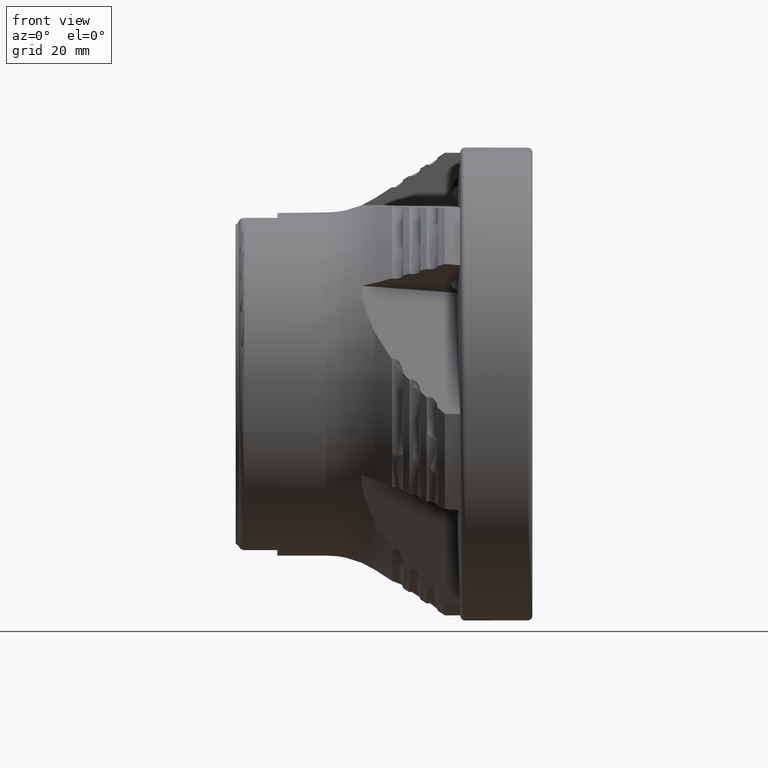
[diagram: clean part render]
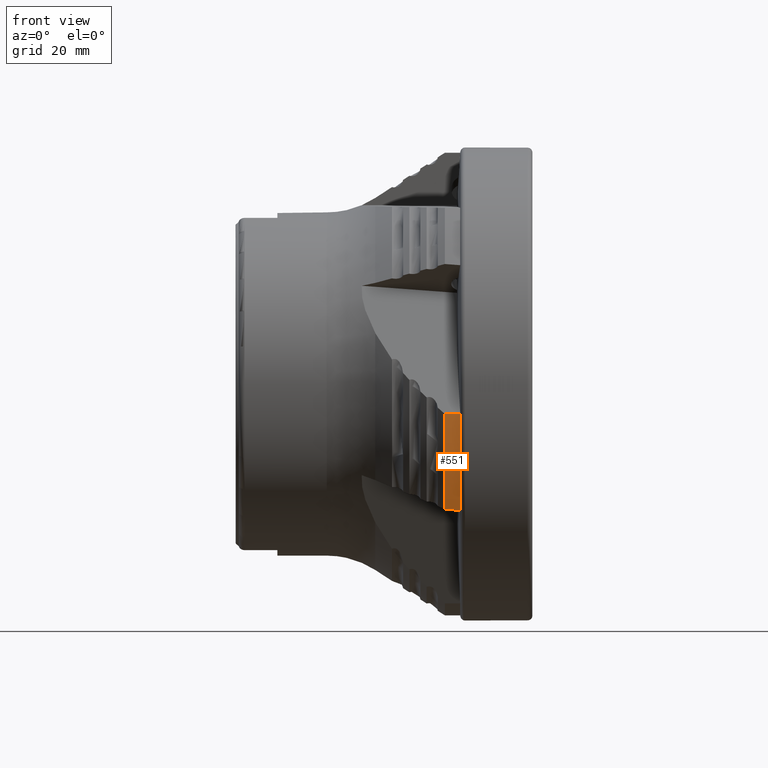
[diagram: same view with one face highlighted and labeled with its STEP entity id]
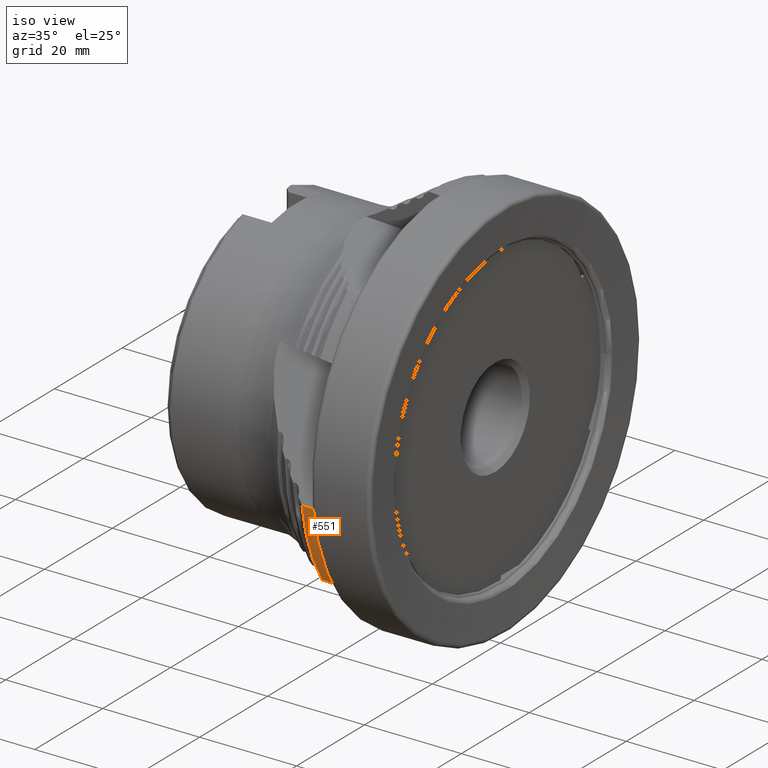
[diagram: same view with one face highlighted and labeled with its STEP entity id]
A machine part, front view. The second image highlights one B-rep face of the part: STEP entity #551.
A second angle (iso view) of the same face is appended — the face is thin or edge-on in the first view.
In plain terms, the highlighted cylindrical surface (partial cylindrical patch) has radius 39.1 mm, axis along (1, -0, -0).
Its self-contained STEP definition (entity closure, byte-faithful):
#368 = VERTEX_POINT ( 'NONE', #3416 ) ;
#428 = CARTESIAN_POINT ( 'NONE',  ( 0.0000000000000000000, 0.0000000000000000000, 0.0000000000000000000 ) ) ;
#551 = ADVANCED_FACE ( 'NONE', ( #1169 ), #3810, .T. ) ;
#654 = EDGE_LOOP ( 'NONE', ( #2819, #6438, #5516, #4697 ) ) ;
#767 = EDGE_CURVE ( 'NONE', #1502, #368, #5754, .T. ) ;
#960 = EDGE_CURVE ( 'NONE', #6437, #368, #6000, .T. ) ;
#1163 = DIRECTION ( 'NONE',  ( 1.000000000000000000, -0.0000000000000000000, -0.0000000000000000000 ) ) ;
#1169 = FACE_OUTER_BOUND ( 'NONE', #654, .T. ) ;
#1370 = CARTESIAN_POINT ( 'NONE',  ( -13.75000000000000500, -32.87845611278686400, -21.16168999960884600 ) ) ;
#1502 = VERTEX_POINT ( 'NONE', #2966 ) ;
#1611 = VECTOR ( 'NONE', #3280, 1000.000000000000000 ) ;
#1863 = CARTESIAN_POINT ( 'NONE',  ( -12.01780353258541100, -32.79624139208597500, -21.28901814300645500 ) ) ;
#2696 = CARTESIAN_POINT ( 'NONE',  ( -13.75000000000000500, 0.0000000000000000000, 0.0000000000000000000 ) ) ;
#2819 = ORIENTED_EDGE ( 'NONE', *, *, #6379, .F. ) ;
#2966 = CARTESIAN_POINT ( 'NONE',  ( -11.15176865470789400, -32.75485674953783600, -21.35250241347022300 ) ) ;
#3027 = LINE ( 'NONE', #6818, #1611 ) ;
#3258 = DIRECTION ( 'NONE',  ( 0.0000000000000000000, 0.0000000000000000000, -1.000000000000000000 ) ) ;
#3280 = DIRECTION ( 'NONE',  ( -1.000000000000000000, 0.0000000000000000000, 0.0000000000000000000 ) ) ;
#3375 = CARTESIAN_POINT ( 'NONE',  ( -11.15176865470789700, -2.517668087090733900E-015, 0.0000000000000000000 ) ) ;
#3416 = CARTESIAN_POINT ( 'NONE',  ( -13.75000000000000500, -32.87845611278686400, -21.16168999960884600 ) ) ;
#3716 = DIRECTION ( 'NONE',  ( 1.000000000000000000, -0.0000000000000000000, -0.0000000000000000000 ) ) ;
#3796 = DIRECTION ( 'NONE',  ( 0.0000000000000000000, 0.0000000000000000000, -1.000000000000000000 ) ) ;
#3810 = CYLINDRICAL_SURFACE ( 'NONE', #6442, 39.09999999999993700 ) ;
#3987 = DIRECTION ( 'NONE',  ( -1.330989879266094600E-016, 1.000000000000000000, 0.0000000000000000000 ) ) ;
#4039 = CARTESIAN_POINT ( 'NONE',  ( -11.15176865470789200, -38.77152034885455800, -5.057589330733732100 ) ) ;
#4199 = AXIS2_PLACEMENT_3D ( 'NONE', #2696, #3716, #3258 ) ;
#4697 = ORIENTED_EDGE ( 'NONE', *, *, #767, .F. ) ;
#5132 = CIRCLE ( 'NONE', #6399, 39.09999999999993700 ) ;
#5183 = CARTESIAN_POINT ( 'NONE',  ( -13.75000000000000500, -38.77152034885455800, -5.057589330733733000 ) ) ;
#5245 = VERTEX_POINT ( 'NONE', #4039 ) ;
#5516 = ORIENTED_EDGE ( 'NONE', *, *, #960, .T. ) ;
#5754 =( BOUNDED_CURVE ( )  B_SPLINE_CURVE ( 3, ( #7277, #1863, #6853, #1370 ),
 .UNSPECIFIED., .F., .F. ) 
 B_SPLINE_CURVE_WITH_KNOTS ( ( 4, 4 ),
 ( 1.551600277535033900, 1.557414760088303300 ),
 .UNSPECIFIED. ) 
 CURVE ( )  GEOMETRIC_REPRESENTATION_ITEM ( )  RATIONAL_B_SPLINE_CURVE ( ( 1.000000000000000000, 0.9999971826513709400, 0.9999971826513709400, 1.000000000000000000 ) ) 
 REPRESENTATION_ITEM ( '' )  );
#5833 = EDGE_CURVE ( 'NONE', #5245, #6437, #3027, .T. ) ;
#6000 = CIRCLE ( 'NONE', #4199, 39.09999999999995900 ) ;
#6379 = EDGE_CURVE ( 'NONE', #5245, #1502, #5132, .T. ) ;
#6399 = AXIS2_PLACEMENT_3D ( 'NONE', #3375, #7503, #3987 ) ;
#6437 = VERTEX_POINT ( 'NONE', #5183 ) ;
#6438 = ORIENTED_EDGE ( 'NONE', *, *, #5833, .T. ) ;
#6442 = AXIS2_PLACEMENT_3D ( 'NONE', #428, #1163, #3796 ) ;
#6818 = CARTESIAN_POINT ( 'NONE',  ( -2.091631210604796600E-015, -38.77152034885455800, -5.057589330733733000 ) ) ;
#6853 = CARTESIAN_POINT ( 'NONE',  ( -12.88388308773090800, -32.83744129591013200, -21.22541382585711700 ) ) ;
#7277 = CARTESIAN_POINT ( 'NONE',  ( -11.15176865470789400, -32.75485674953783600, -21.35250241347022300 ) ) ;
#7503 = DIRECTION ( 'NONE',  ( 1.000000000000000000, 1.239285763332018300E-016, -0.0000000000000000000 ) ) ;